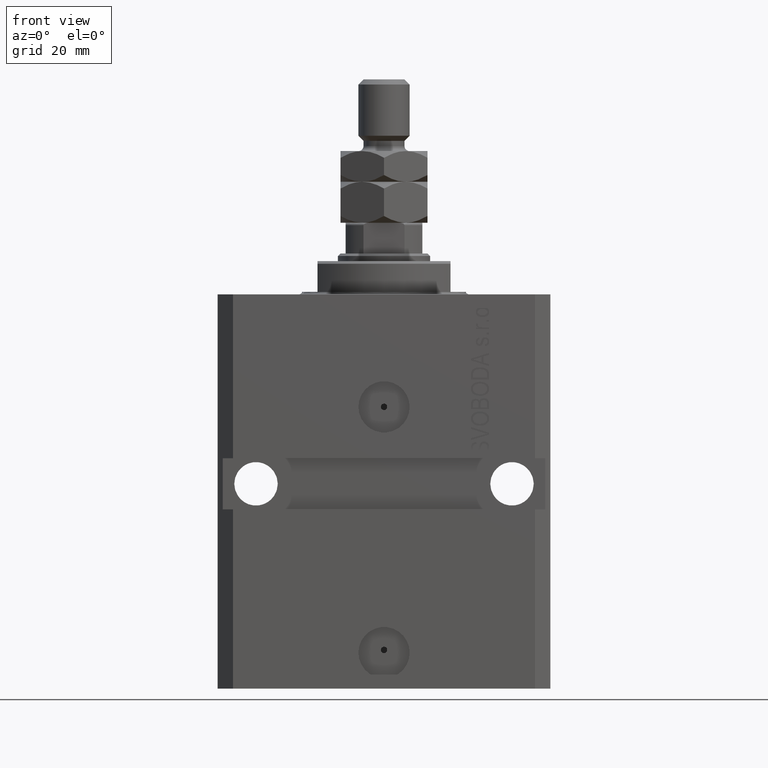
[diagram: clean part render]
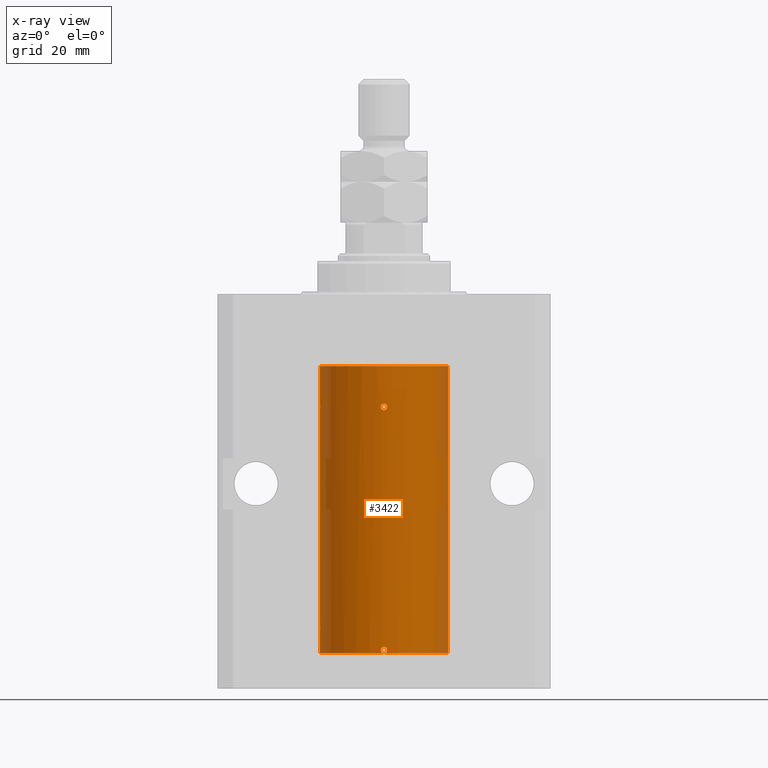
[diagram: x-ray — body ghosted, one internal face saturated and labeled with its STEP entity id]
A machine part, front view, then the same camera in x-ray: the body is ghosted and one INTERNAL B-rep face — a face not visible from any outside direction — is saturated and labeled: STEP entity #3422.
In plain terms, the highlighted cylindrical surface (partial cylindrical patch) has radius 12.5 mm, axis along (0, 0, 1).
Its self-contained STEP definition (entity closure, byte-faithful):
#367 = CARTESIAN_POINT ( 'NONE',  ( -12.50000000000000178, -0.1631389274720982940, -65.62500000000014211 ) ) ;
#466 = CARTESIAN_POINT ( 'NONE',  ( 0.1636982395582734229, -12.49915742890632053, -70.08372397847031721 ) ) ;
#538 = EDGE_CURVE ( 'NONE', #21631, #42129, #1440, .T. ) ;
#712 = ORIENTED_EDGE ( 'NONE', *, *, #6862, .T. ) ;
#1057 = AXIS2_PLACEMENT_3D ( 'NONE', #15665, #7792, #15446 ) ;
#1440 = B_SPLINE_CURVE_WITH_KNOTS ( 'NONE', 3,
 ( #27974, #38449, #21672, #3586, #34961, #14018 ),
 .UNSPECIFIED., .F., .F.,
 ( 4, 2, 4 ),
 ( 0.002931796015602113753, 0.003420015203430352198, 0.003908234391258590644 ),
 .UNSPECIFIED. ) ;
#1795 = ORIENTED_EDGE ( 'NONE', *, *, #41897, .T. ) ;
#1840 = CARTESIAN_POINT ( 'NONE',  ( -12.50000000000000000, 1.530808498934191521E-15, -70.09999999999999432 ) ) ;
#1842 = CARTESIAN_POINT ( 'NONE',  ( -0.3266214369556185715, -12.49626442692393979, -68.91775879961872420 ) ) ;
#1957 = EDGE_CURVE ( 'NONE', #36635, #26483, #21981, .T. ) ;
#2623 = CARTESIAN_POINT ( 'NONE',  ( -0.6250000000036063375, -12.48436522214868383, -21.99999999999969447 ) ) ;
#2700 = CARTESIAN_POINT ( 'NONE',  ( -12.49625500642808262, -0.3269795983092943503, -21.44293326880232087 ) ) ;
#2713 = CARTESIAN_POINT ( 'NONE',  ( 0.6250000000000017764, -12.48436522214886502, -22.00000000000000000 ) ) ;
#2745 = FACE_OUTER_BOUND ( 'NONE', #39069, .T. ) ;
#2848 = EDGE_CURVE ( 'NONE', #31339, #33012, #37216, .T. ) ;
#3317 = CARTESIAN_POINT ( 'NONE',  ( 0.6250000000000017764, -12.48436522214886502, -22.00000000000000000 ) ) ;
#3422 = ADVANCED_FACE ( 'NONE', ( #16443, #2745 ), #30629, .F. ) ;
#3586 = CARTESIAN_POINT ( 'NONE',  ( -0.3268155536464903976, -12.49625914831439921, -70.03213681627768494 ) ) ;
#3977 = DIRECTION ( 'NONE',  ( -0.000000000000000000, -0.000000000000000000, 1.000000000000000000 ) ) ;
#4419 = CARTESIAN_POINT ( 'NONE',  ( 0.6250000000080512264, -12.48436522214846001, -69.47499999999922693 ) ) ;
#4527 = CARTESIAN_POINT ( 'NONE',  ( 0.6250000000080512264, -12.48436522214846001, -69.47499999999922693 ) ) ;
#4782 = CIRCLE ( 'NONE', #1057, 12.50000000000000000 ) ;
#5209 = AXIS2_PLACEMENT_3D ( 'NONE', #40416, #22517, #8573 ) ;
#5332 = DIRECTION ( 'NONE',  ( -0.000000000000000000, -0.000000000000000000, 1.000000000000000000 ) ) ;
#5363 = CARTESIAN_POINT ( 'NONE',  ( 0.5459720203952235229, -12.48811039973180748, -21.68495456851491454 ) ) ;
#5437 = EDGE_CURVE ( 'NONE', #42129, #42052, #32314, .T. ) ;
#5646 = B_SPLINE_CURVE_WITH_KNOTS ( 'NONE', 3,
 ( #2623, #45861, #27483, #10047, #24217, #20969, #45173, #6803, #35158, #3317 ),
 .UNSPECIFIED., .F., .F.,
 ( 4, 2, 2, 2, 4 ),
 ( 0.001954339857564081195, 0.002442813476812580147, 0.002931287096061078665, 0.003419760715309577617, 0.003908234334558076568 ),
 .UNSPECIFIED. ) ;
#5731 = CARTESIAN_POINT ( 'NONE',  ( -12.49627279065598628, -0.3263143231498885077, -22.55740725890368736 ) ) ;
#6190 = EDGE_CURVE ( 'NONE', #26483, #36635, #5646, .T. ) ;
#6281 = CARTESIAN_POINT ( 'NONE',  ( -0.3834811789276724170, -12.49425278195415423, -21.49962372461870785 ) ) ;
#6803 = CARTESIAN_POINT ( 'NONE',  ( 0.5570667809667051440, -12.48811511264091934, -22.32697951956172844 ) ) ;
#6862 = EDGE_CURVE ( 'NONE', #37782, #15638, #10564, .T. ) ;
#7217 = CARTESIAN_POINT ( 'NONE',  ( 0.5460961315382516501, -12.48810487413754444, -69.16017824283937898 ) ) ;
#7714 = AXIS2_PLACEMENT_3D ( 'NONE', #26688, #44824, #16912 ) ;
#7767 = B_SPLINE_CURVE_WITH_KNOTS ( 'NONE', 3,
 ( #4419, #14177, #39055, #7217, #17884, #32073, #43928, #29510, #1842, #19493, #40423, #43707 ),
 .UNSPECIFIED., .F., .F.,
 ( 4, 2, 2, 2, 2, 4 ),
 ( 0.0009773924225144256777, 0.001221692871650375710, 0.001465993320786325958, 0.001954594219058255079, 0.002443195117330184199, 0.002931796015602113753 ),
 .UNSPECIFIED. ) ;
#7792 = DIRECTION ( 'NONE',  ( 0.000000000000000000, 0.000000000000000000, 1.000000000000000000 ) ) ;
#7860 = EDGE_LOOP ( 'NONE', ( #15796, #25808 ) ) ;
#8040 = CARTESIAN_POINT ( 'NONE',  ( -12.49627279065598628, -0.3263143231498935593, -65.55740725890372289 ) ) ;
#8061 = CARTESIAN_POINT ( 'NONE',  ( -12.50000000000000000, 1.530808498934191521E-15, -70.09999999999999432 ) ) ;
#8339 = EDGE_CURVE ( 'NONE', #26533, #9706, #15548, .T. ) ;
#8573 = DIRECTION ( 'NONE',  ( 1.000000000000000000, 0.000000000000000000, 0.000000000000000000 ) ) ;
#9330 = VECTOR ( 'NONE', #5332, 1000.000000000000000 ) ;
#9669 = CARTESIAN_POINT ( 'NONE',  ( -12.48435842450557942, -0.6251357828644855674, -21.83560799371398886 ) ) ;
#9706 = VERTEX_POINT ( 'NONE', #33346 ) ;
#9756 = CARTESIAN_POINT ( 'NONE',  ( -0.08132084456756884239, -12.50000145133807550, -21.37497097323671014 ) ) ;
#10047 = CARTESIAN_POINT ( 'NONE',  ( -0.3270961104548176790, -12.49625086038168931, -22.55694885317108600 ) ) ;
#10132 = ORIENTED_EDGE ( 'NONE', *, *, #20184, .F. ) ;
#10564 = LINE ( 'NONE', #28919, #41218 ) ;
#10802 = DIRECTION ( 'NONE',  ( -0.000000000000000000, -0.000000000000000000, 1.000000000000000000 ) ) ;
#10827 = CARTESIAN_POINT ( 'NONE',  ( -12.48435842450557942, -0.6251357828645015546, -64.83560799371397820 ) ) ;
#11155 = CARTESIAN_POINT ( 'NONE',  ( 0.5573988467447082984, -12.48809900631781034, -69.80140147935480854 ) ) ;
#11437 = EDGE_CURVE ( 'NONE', #41119, #12560, #11862, .T. ) ;
#11767 = CARTESIAN_POINT ( 'NONE',  ( -0.6250000000036063375, -12.48436522214868383, -21.99999999999969447 ) ) ;
#11862 = LINE ( 'NONE', #14879, #30971 ) ;
#12560 = VERTEX_POINT ( 'NONE', #26953 ) ;
#12996 = ORIENTED_EDGE ( 'NONE', *, *, #27824, .F. ) ;
#13150 = CARTESIAN_POINT ( 'NONE',  ( -12.50000000000017941, 3.883381646606358354E-13, -22.62500000000358824 ) ) ;
#13247 = CARTESIAN_POINT ( 'NONE',  ( 0.6087318085567836601, -12.48520854404103630, -21.83633981484414122 ) ) ;
#13380 = CARTESIAN_POINT ( 'NONE',  ( -12.48809300548636081, -0.5575284115737433321, -21.67380822970859811 ) ) ;
#13602 = VECTOR ( 'NONE', #22343, 1000.000000000000000 ) ;
#14018 = CARTESIAN_POINT ( 'NONE',  ( 1.470104640658484994E-15, -12.50000000000000000, -70.09999999999999432 ) ) ;
#14054 = DIRECTION ( 'NONE',  ( 0.000000000000000000, 0.000000000000000000, 1.000000000000000000 ) ) ;
#14177 = CARTESIAN_POINT ( 'NONE',  ( 0.6249999999998496758, -12.48436522214886857, -69.39345217010018985 ) ) ;
#14440 = ORIENTED_EDGE ( 'NONE', *, *, #8339, .T. ) ;
#14535 = CARTESIAN_POINT ( 'NONE',  ( -12.48811925907523879, -0.5569488909189596049, -65.32709604503179435 ) ) ;
#14879 = CARTESIAN_POINT ( 'NONE',  ( -12.50000000000000000, 1.530808498934191521E-15, -70.09999999999999432 ) ) ;
#15092 = CARTESIAN_POINT ( 'NONE',  ( 0.6250000000003167466, -12.48436522214884725, -69.63812747540310966 ) ) ;
#15446 = DIRECTION ( 'NONE',  ( 1.000000000000000000, 0.000000000000000000, 0.000000000000000000 ) ) ;
#15548 = LINE ( 'NONE', #1840, #9330 ) ;
#15638 = VERTEX_POINT ( 'NONE', #17609 ) ;
#15665 = CARTESIAN_POINT ( 'NONE',  ( 0.000000000000000000, 0.000000000000000000, -70.09999999999999432 ) ) ;
#15796 = ORIENTED_EDGE ( 'NONE', *, *, #1957, .T. ) ;
#15945 = CARTESIAN_POINT ( 'NONE',  ( -12.50000000000000000, -2.089494013101375120E-17, -21.37499999999999645 ) ) ;
#16443 = FACE_BOUND ( 'NONE', #7860, .T. ) ;
#16912 = DIRECTION ( 'NONE',  ( 1.000000000000000000, 0.000000000000000000, 0.000000000000000000 ) ) ;
#17609 = CARTESIAN_POINT ( 'NONE',  ( -12.50000000000017941, 3.883381646606358354E-13, -22.62500000000358824 ) ) ;
#17636 = ORIENTED_EDGE ( 'NONE', *, *, #2848, .F. ) ;
#17884 = CARTESIAN_POINT ( 'NONE',  ( 0.5002336959535146343, -12.49012317397092886, -69.09133113277157179 ) ) ;
#18238 = CARTESIAN_POINT ( 'NONE',  ( -12.49625500642808262, -0.3269795983093126690, -64.44293326880233508 ) ) ;
#18575 = CARTESIAN_POINT ( 'NONE',  ( 0.08262306818364176242, -12.50000000000000000, -70.09999999999999432 ) ) ;
#19493 = CARTESIAN_POINT ( 'NONE',  ( -0.5571821530518563659, -12.48810851326189031, -69.14827784464195304 ) ) ;
#19523 = CARTESIAN_POINT ( 'NONE',  ( -0.6249999999998608891, -12.48436522214887034, -21.83682388509806316 ) ) ;
#19902 = CARTESIAN_POINT ( 'NONE',  ( -12.48437204107163190, -0.6248637920779505084, -22.16542285240648624 ) ) ;
#20184 = EDGE_CURVE ( 'NONE', #26533, #42129, #25229, .T. ) ;
#20349 = DIRECTION ( 'NONE',  ( 1.000000000000000000, 0.000000000000000000, 0.000000000000000000 ) ) ;
#20969 = CARTESIAN_POINT ( 'NONE',  ( 0.1643920345763580093, -12.50000678895248107, -22.62513577909574636 ) ) ;
#21363 = ORIENTED_EDGE ( 'NONE', *, *, #538, .T. ) ;
#21384 = AXIS2_PLACEMENT_3D ( 'NONE', #30807, #14054, #20349 ) ;
#21629 = EDGE_CURVE ( 'NONE', #15638, #41119, #35424, .T. ) ;
#21631 = VERTEX_POINT ( 'NONE', #34548 ) ;
#21672 = CARTESIAN_POINT ( 'NONE',  ( -0.5573321180046024725, -12.48810161786719242, -69.80148238604530775 ) ) ;
#21830 = CARTESIAN_POINT ( 'NONE',  ( 1.470104640658484994E-15, -12.50000000000000000, -70.09999999999999432 ) ) ;
#21958 = CARTESIAN_POINT ( 'NONE',  ( -12.48437204107163190, -0.6248637920779611665, -65.16542285240649335 ) ) ;
#21981 = B_SPLINE_CURVE_WITH_KNOTS ( 'NONE', 3,
 ( #30910, #45107, #13247, #5363, #27425, #37432, #41614, #9756, #44187, #38113, #6281, #40691, #19523, #40915 ),
 .UNSPECIFIED., .F., .F.,
 ( 4, 2, 2, 2, 2, 2, 4 ),
 ( 0.000000000000000000, 0.0002442924821955120467, 0.0004885849643910240934, 0.0009771699287820408142, 0.001221462410977549283, 0.001465754893173057318, 0.001954339857564081195 ),
 .UNSPECIFIED. ) ;
#22067 = CARTESIAN_POINT ( 'NONE',  ( 0.3844519291904487934, -12.49421963472024188, -69.97447303647051342 ) ) ;
#22343 = DIRECTION ( 'NONE',  ( -0.000000000000000000, -0.000000000000000000, 1.000000000000000000 ) ) ;
#22517 = DIRECTION ( 'NONE',  ( 0.000000000000000000, 0.000000000000000000, 1.000000000000000000 ) ) ;
#22529 = CARTESIAN_POINT ( 'NONE',  ( 0.3151108292487665996, -12.49625698805480845, -70.02093695688176922 ) ) ;
#24072 = ORIENTED_EDGE ( 'NONE', *, *, #5437, .T. ) ;
#24091 = EDGE_CURVE ( 'NONE', #9706, #37782, #24111, .T. ) ;
#24111 = B_SPLINE_CURVE_WITH_KNOTS ( 'NONE', 3,
 ( #39868, #367, #8040, #14535, #21958, #10827, #39410, #18238, #42918, #24990 ),
 .UNSPECIFIED., .F., .F.,
 ( 4, 2, 2, 2, 4 ),
 ( 0.001954339881912786538, 0.002442813509249238107, 0.002931287136585690109, 0.003419760763922141678, 0.003908234391258593246 ),
 .UNSPECIFIED. ) ;
#24217 = CARTESIAN_POINT ( 'NONE',  ( -0.1654228519529012675, -12.49999318979582874, -22.62486379587040020 ) ) ;
#24990 = CARTESIAN_POINT ( 'NONE',  ( -12.50000000000000000, -1.053276923642966949E-14, -64.37500000000000000 ) ) ;
#25229 = CIRCLE ( 'NONE', #5209, 12.50000000000000000 ) ;
#25808 = ORIENTED_EDGE ( 'NONE', *, *, #6190, .T. ) ;
#26144 = CARTESIAN_POINT ( 'NONE',  ( -12.50000000000000000, -1.053276923642966949E-14, -64.37500000000000000 ) ) ;
#26483 = VERTEX_POINT ( 'NONE', #11767 ) ;
#26533 = VERTEX_POINT ( 'NONE', #8061 ) ;
#26688 = CARTESIAN_POINT ( 'NONE',  ( 0.000000000000000000, 0.000000000000000000, -70.09999999999999432 ) ) ;
#26953 = CARTESIAN_POINT ( 'NONE',  ( -12.50000000000000000, 1.530808498934191521E-15, -13.99999999999999822 ) ) ;
#27337 = CARTESIAN_POINT ( 'NONE',  ( -12.50000000000000178, -0.1631389274720966009, -22.62500000000016698 ) ) ;
#27354 = ORIENTED_EDGE ( 'NONE', *, *, #21629, .T. ) ;
#27425 = CARTESIAN_POINT ( 'NONE',  ( 0.4995290477189069378, -12.49014813577965732, -21.61562461405073421 ) ) ;
#27483 = CARTESIAN_POINT ( 'NONE',  ( -0.5574072998201419216, -12.48809731436987747, -22.32631425440896322 ) ) ;
#27824 = EDGE_CURVE ( 'NONE', #42129, #31339, #4782, .T. ) ;
#27974 = CARTESIAN_POINT ( 'NONE',  ( -0.6250000000000025535, -12.48436522214886324, -69.47499999999999432 ) ) ;
#28919 = CARTESIAN_POINT ( 'NONE',  ( -12.50000000000000000, 1.530808498934191521E-15, -70.09999999999999432 ) ) ;
#29510 = CARTESIAN_POINT ( 'NONE',  ( -0.1634321124498647193, -12.49999667087055499, -68.85006658259450774 ) ) ;
#30629 = CYLINDRICAL_SURFACE ( 'NONE', #7714, 12.50000000000000000 ) ;
#30807 = CARTESIAN_POINT ( 'NONE',  ( 0.000000000000000000, 0.000000000000000000, -13.99999999999999822 ) ) ;
#30910 = CARTESIAN_POINT ( 'NONE',  ( 0.6250000000000017764, -12.48436522214886502, -22.00000000000000000 ) ) ;
#30971 = VECTOR ( 'NONE', #3977, 1000.000000000000000 ) ;
#31339 = VERTEX_POINT ( 'NONE', #39793 ) ;
#32073 = CARTESIAN_POINT ( 'NONE',  ( 0.3251408448057629963, -12.49631649875954764, -68.91629557722380639 ) ) ;
#32314 = B_SPLINE_CURVE_WITH_KNOTS ( 'NONE', 3,
 ( #21830, #18575, #466, #22529, #22067, #11155, #15092, #43236 ),
 .UNSPECIFIED., .F., .F.,
 ( 4, 2, 2, 4 ),
 ( 0.000000000000000000, 0.0002443481056286064194, 0.0004886962112572128389, 0.0009773924225144256777 ),
 .UNSPECIFIED. ) ;
#32538 = CIRCLE ( 'NONE', #21384, 12.50000000000000000 ) ;
#33012 = VERTEX_POINT ( 'NONE', #39698 ) ;
#33346 = CARTESIAN_POINT ( 'NONE',  ( -12.50000000000017941, 3.883381774819353300E-13, -65.62500000000359535 ) ) ;
#34087 = CARTESIAN_POINT ( 'NONE',  ( -12.50000000000000178, -0.1651708725692886126, -21.37499999999999645 ) ) ;
#34548 = CARTESIAN_POINT ( 'NONE',  ( -0.6250000000000025535, -12.48436522214886324, -69.47499999999999432 ) ) ;
#34961 = CARTESIAN_POINT ( 'NONE',  ( -0.1650848372272839815, -12.50000000000000178, -70.10000000000000853 ) ) ;
#35158 = CARTESIAN_POINT ( 'NONE',  ( 0.6250000000000018874, -12.48436522214886502, -22.16517087750612092 ) ) ;
#35201 = EDGE_CURVE ( 'NONE', #42052, #21631, #7767, .T. ) ;
#35424 = B_SPLINE_CURVE_WITH_KNOTS ( 'NONE', 3,
 ( #13150, #27337, #5731, #40830, #19902, #9669, #13380, #2700, #34087, #15945 ),
 .UNSPECIFIED., .F., .F.,
 ( 4, 2, 2, 2, 4 ),
 ( 0.001954339881912776130, 0.002442813509249222061, 0.002931287136585667558, 0.003419760763922113488, 0.003908234391258559419 ),
 .UNSPECIFIED. ) ;
#36635 = VERTEX_POINT ( 'NONE', #2713 ) ;
#37216 = LINE ( 'NONE', #40464, #13602 ) ;
#37432 = CARTESIAN_POINT ( 'NONE',  ( 0.3265259744707224576, -12.49626742995426376, -21.44268445620963348 ) ) ;
#37782 = VERTEX_POINT ( 'NONE', #26144 ) ;
#38113 = CARTESIAN_POINT ( 'NONE',  ( -0.3146137485037712733, -12.49626935132541306, -21.45378489701016633 ) ) ;
#38449 = CARTESIAN_POINT ( 'NONE',  ( -0.6250000000000026645, -12.48436522214885969, -69.63984350486184383 ) ) ;
#39055 = CARTESIAN_POINT ( 'NONE',  ( 0.6087772866342635592, -12.48520622767670574, -69.31152541805840883 ) ) ;
#39069 = EDGE_LOOP ( 'NONE', ( #10132, #14440, #42145, #712, #27354, #44010, #1795, #17636, #12996, #24072, #42913, #21363 ) ) ;
#39410 = CARTESIAN_POINT ( 'NONE',  ( -12.48809300548636081, -0.5575284115737590973, -64.67380822970859811 ) ) ;
#39698 = CARTESIAN_POINT ( 'NONE',  ( 12.50000000000000000, 0.000000000000000000, -13.99999999999999822 ) ) ;
#39793 = CARTESIAN_POINT ( 'NONE',  ( 12.50000000000000000, 0.000000000000000000, -70.09999999999999432 ) ) ;
#39868 = CARTESIAN_POINT ( 'NONE',  ( -12.50000000000017941, 3.883381774819353300E-13, -65.62500000000359535 ) ) ;
#40080 = CARTESIAN_POINT ( 'NONE',  ( 1.470104640658484994E-15, -12.50000000000000000, -70.09999999999999432 ) ) ;
#40416 = CARTESIAN_POINT ( 'NONE',  ( 0.000000000000000000, 0.000000000000000000, -70.09999999999999432 ) ) ;
#40423 = CARTESIAN_POINT ( 'NONE',  ( -0.6250000000000027756, -12.48436522214886502, -69.31002761350272579 ) ) ;
#40464 = CARTESIAN_POINT ( 'NONE',  ( 12.50000000000000000, 0.000000000000000000, -70.09999999999999432 ) ) ;
#40691 = CARTESIAN_POINT ( 'NONE',  ( -0.5585674314229008841, -12.48806005752685344, -21.67463197640445571 ) ) ;
#40830 = CARTESIAN_POINT ( 'NONE',  ( -12.48811925907523879, -0.5569488909189486137, -22.32709604503179079 ) ) ;
#40915 = CARTESIAN_POINT ( 'NONE',  ( -0.6250000000036063375, -12.48436522214868383, -21.99999999999969447 ) ) ;
#41119 = VERTEX_POINT ( 'NONE', #45445 ) ;
#41218 = VECTOR ( 'NONE', #10802, 1000.000000000000000 ) ;
#41614 = CARTESIAN_POINT ( 'NONE',  ( 0.1633100384313375397, -12.49999709136798032, -21.37505817264410979 ) ) ;
#41897 = EDGE_CURVE ( 'NONE', #12560, #33012, #32538, .T. ) ;
#42052 = VERTEX_POINT ( 'NONE', #4527 ) ;
#42129 = VERTEX_POINT ( 'NONE', #40080 ) ;
#42145 = ORIENTED_EDGE ( 'NONE', *, *, #24091, .T. ) ;
#42913 = ORIENTED_EDGE ( 'NONE', *, *, #35201, .T. ) ;
#42918 = CARTESIAN_POINT ( 'NONE',  ( -12.50000000000000178, -0.1651708725692960789, -64.37500000000000000 ) ) ;
#43236 = CARTESIAN_POINT ( 'NONE',  ( 0.6250000000080512264, -12.48436522214846001, -69.47499999999922693 ) ) ;
#43707 = CARTESIAN_POINT ( 'NONE',  ( -0.6250000000000025535, -12.48436522214886324, -69.47499999999999432 ) ) ;
#43928 = CARTESIAN_POINT ( 'NONE',  ( 0.1629224624750973960, -12.50000332393458891, -68.84993352130271660 ) ) ;
#44010 = ORIENTED_EDGE ( 'NONE', *, *, #11437, .T. ) ;
#44187 = CARTESIAN_POINT ( 'NONE',  ( -0.1632543323367347532, -12.49916307336598287, -21.39116441262433099 ) ) ;
#44824 = DIRECTION ( 'NONE',  ( -0.000000000000000000, -0.000000000000000000, 1.000000000000000000 ) ) ;
#45107 = CARTESIAN_POINT ( 'NONE',  ( 0.6250000000000018874, -12.48436522214886324, -21.91739573630514926 ) ) ;
#45173 = CARTESIAN_POINT ( 'NONE',  ( 0.3261918319691095580, -12.49627709975190015, -22.55752837903201424 ) ) ;
#45445 = CARTESIAN_POINT ( 'NONE',  ( -12.50000000000000000, -2.089494013101375120E-17, -21.37499999999999645 ) ) ;
#45861 = CARTESIAN_POINT ( 'NONE',  ( -0.6250000000001363354, -12.48436522214885258, -22.16313892819009013 ) ) ;